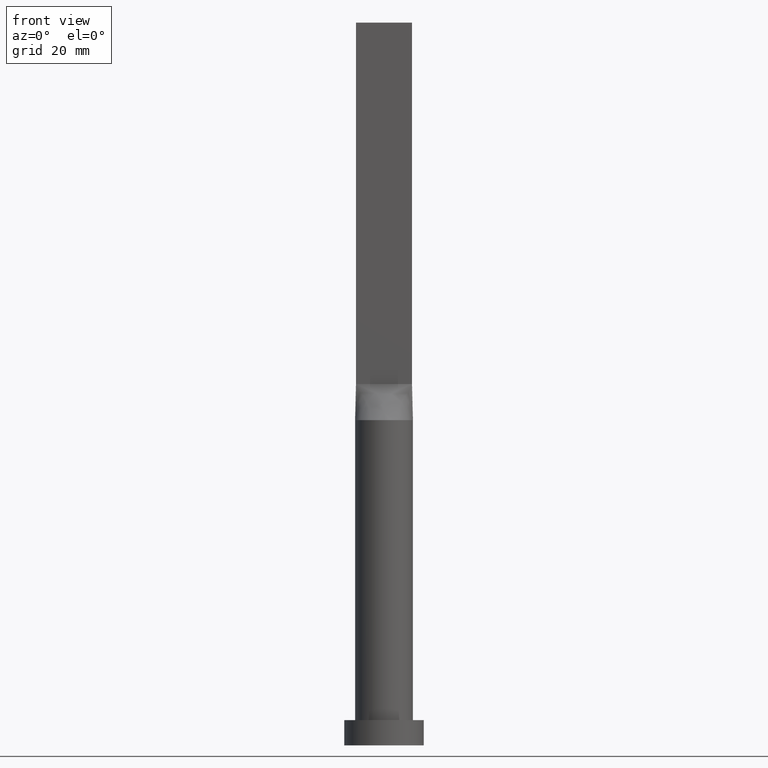
[diagram: clean part render]
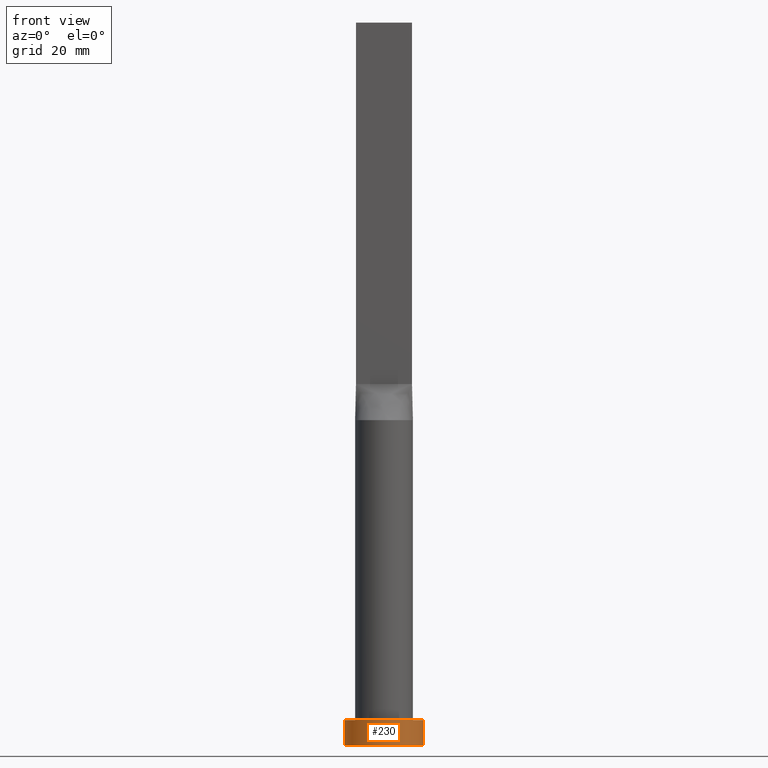
[diagram: same view with one face highlighted and labeled with its STEP entity id]
A machine part, front view. The second image highlights one B-rep face of the part: STEP entity #230.
In plain terms, the highlighted cylindrical surface (partial cylindrical patch) has radius 11 mm, axis along (-0, -0, -1).
Its self-contained STEP definition (entity closure, byte-faithful):
#4 = DIRECTION ( 'NONE',  ( 0.000000000000000000, 0.000000000000000000, 1.000000000000000000 ) ) ;
#42 = CYLINDRICAL_SURFACE ( 'NONE', #386, 11.00000000000000000 ) ;
#69 = DIRECTION ( 'NONE',  ( 1.000000000000000000, 0.000000000000000000, 0.000000000000000000 ) ) ;
#92 = VECTOR ( 'NONE', #159, 1000.000000000000000 ) ;
#114 = AXIS2_PLACEMENT_3D ( 'NONE', #429, #610, #69 ) ;
#159 = DIRECTION ( 'NONE',  ( -0.000000000000000000, -0.000000000000000000, -1.000000000000000000 ) ) ;
#166 = ORIENTED_EDGE ( 'NONE', *, *, #496, .F. ) ;
#174 = CIRCLE ( 'NONE', #585, 11.00000000000000000 ) ;
#194 = VERTEX_POINT ( 'NONE', #582 ) ;
#203 = DIRECTION ( 'NONE',  ( -1.000000000000000000, 0.000000000000000000, 0.000000000000000000 ) ) ;
#228 = CARTESIAN_POINT ( 'NONE',  ( -11.00000000000000000, 0.000000000000000000, 7.000000000000000000 ) ) ;
#230 = ADVANCED_FACE ( 'NONE', ( #578 ), #42, .T. ) ;
#243 = EDGE_CURVE ( 'NONE', #194, #312, #244, .T. ) ;
#244 = CIRCLE ( 'NONE', #114, 11.00000000000000000 ) ;
#259 = CARTESIAN_POINT ( 'NONE',  ( 11.00000000000000000, 1.347111479062088405E-15, 7.000000000000000000 ) ) ;
#270 = VERTEX_POINT ( 'NONE', #228 ) ;
#271 = CARTESIAN_POINT ( 'NONE',  ( -11.00000000000000000, 0.000000000000000000, 7.000000000000000000 ) ) ;
#276 = ORIENTED_EDGE ( 'NONE', *, *, #243, .T. ) ;
#291 = CARTESIAN_POINT ( 'NONE',  ( 11.00000000000000000, 1.347111479062088405E-15, 0.000000000000000000 ) ) ;
#306 = CARTESIAN_POINT ( 'NONE',  ( 0.000000000000000000, 0.000000000000000000, 7.000000000000000000 ) ) ;
#312 = VERTEX_POINT ( 'NONE', #291 ) ;
#314 = LINE ( 'NONE', #498, #92 ) ;
#349 = DIRECTION ( 'NONE',  ( -0.000000000000000000, -0.000000000000000000, -1.000000000000000000 ) ) ;
#386 = AXIS2_PLACEMENT_3D ( 'NONE', #497, #539, #203 ) ;
#405 = DIRECTION ( 'NONE',  ( 1.000000000000000000, 0.000000000000000000, 0.000000000000000000 ) ) ;
#415 = EDGE_LOOP ( 'NONE', ( #445, #166, #551, #276 ) ) ;
#429 = CARTESIAN_POINT ( 'NONE',  ( 0.000000000000000000, 0.000000000000000000, 0.000000000000000000 ) ) ;
#445 = ORIENTED_EDGE ( 'NONE', *, *, #523, .F. ) ;
#496 = EDGE_CURVE ( 'NONE', #270, #513, #174, .T. ) ;
#497 = CARTESIAN_POINT ( 'NONE',  ( 0.000000000000000000, 0.000000000000000000, 7.000000000000000000 ) ) ;
#498 = CARTESIAN_POINT ( 'NONE',  ( 11.00000000000000000, 1.347111479062088405E-15, 7.000000000000000000 ) ) ;
#500 = EDGE_CURVE ( 'NONE', #270, #194, #507, .T. ) ;
#507 = LINE ( 'NONE', #271, #598 ) ;
#513 = VERTEX_POINT ( 'NONE', #259 ) ;
#523 = EDGE_CURVE ( 'NONE', #513, #312, #314, .T. ) ;
#539 = DIRECTION ( 'NONE',  ( -0.000000000000000000, -0.000000000000000000, -1.000000000000000000 ) ) ;
#551 = ORIENTED_EDGE ( 'NONE', *, *, #500, .T. ) ;
#578 = FACE_OUTER_BOUND ( 'NONE', #415, .T. ) ;
#582 = CARTESIAN_POINT ( 'NONE',  ( -11.00000000000000000, 0.000000000000000000, 0.000000000000000000 ) ) ;
#585 = AXIS2_PLACEMENT_3D ( 'NONE', #306, #4, #405 ) ;
#598 = VECTOR ( 'NONE', #349, 1000.000000000000000 ) ;
#610 = DIRECTION ( 'NONE',  ( 0.000000000000000000, 0.000000000000000000, 1.000000000000000000 ) ) ;